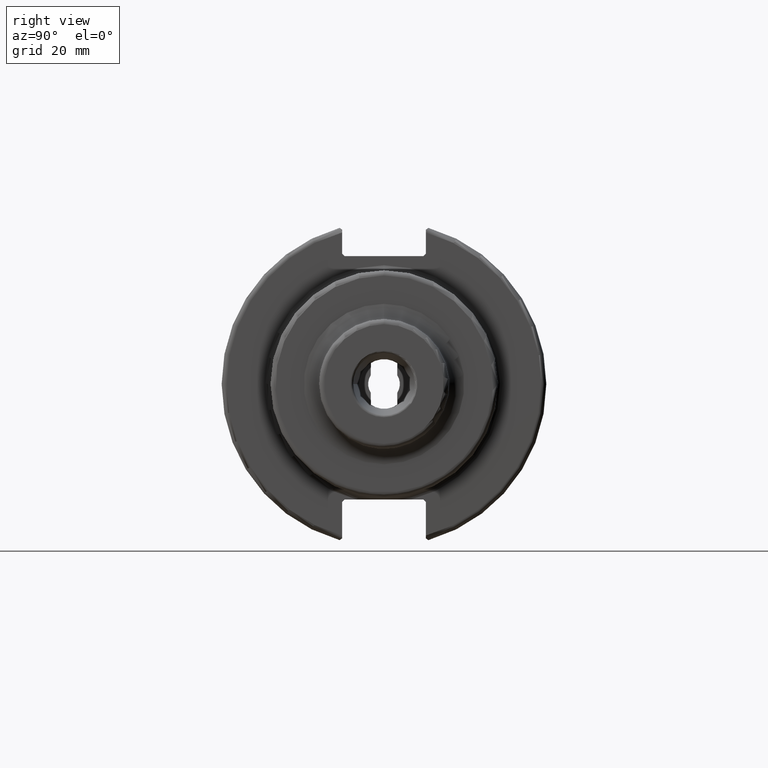
[diagram: clean part render]
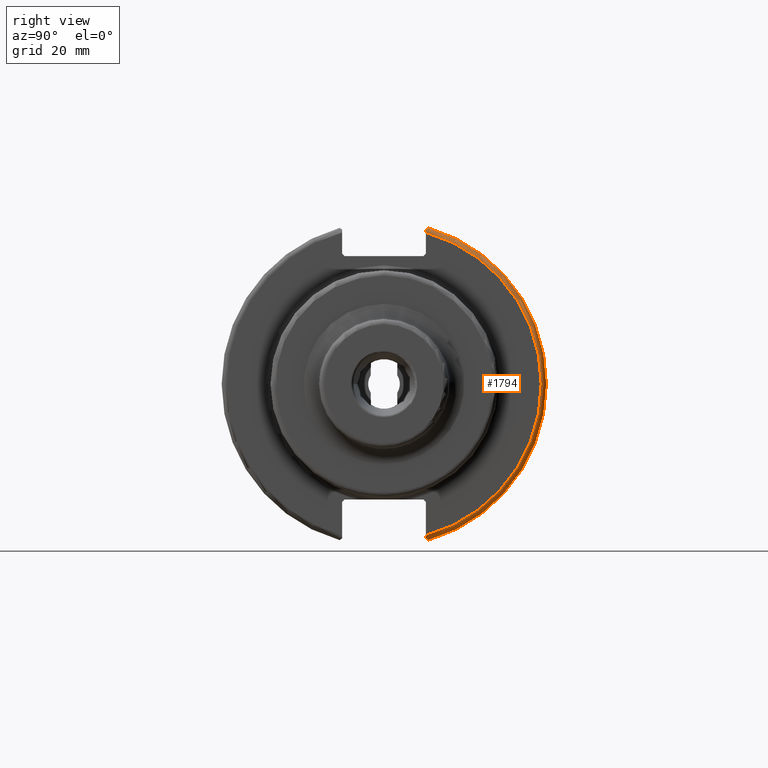
[diagram: same view with one face highlighted and labeled with its STEP entity id]
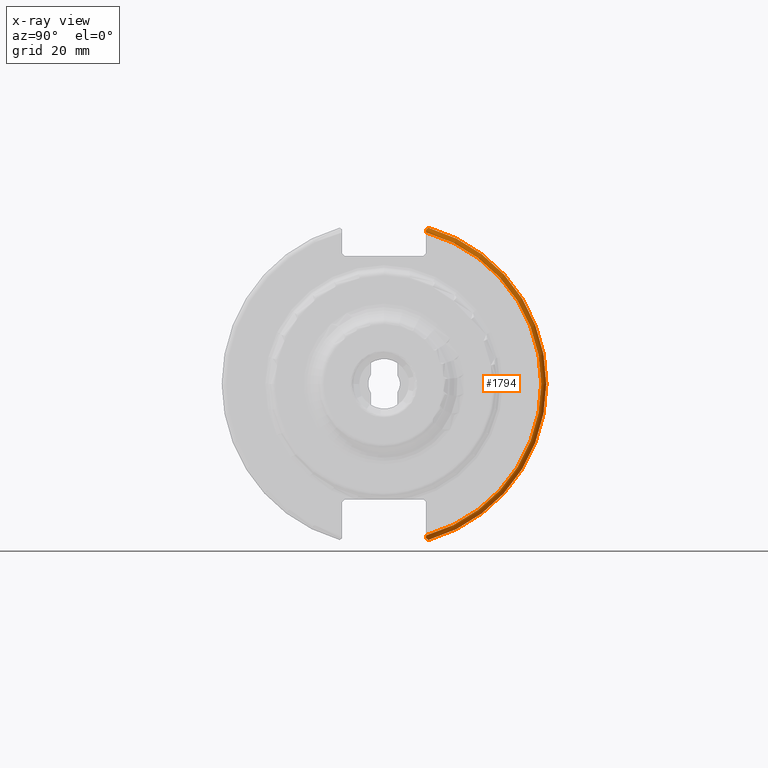
[diagram: x-ray of the same camera — body ghosted, the highlighted face saturated]
A machine part, right view. The second image highlights one B-rep face of the part: STEP entity #1794.
The next image is the same camera in x-ray: the body ghosted, the highlighted face saturated — about 0% of this face is hidden behind the body in this view.
In plain terms, the highlighted toroidal blend (fillet) surface has major radius 30.75 mm and minor (blend) radius 1 mm.
Its self-contained STEP definition (entity closure, byte-faithful):
#90=B_SPLINE_CURVE_WITH_KNOTS('',3,(#3490,#3491,#3492,#3493,#3494,#3495),
 .UNSPECIFIED.,.F.,.F.,(4,2,4),(0.0977210450333157,0.111963554372601,0.150804064902975),
 .UNSPECIFIED.);
#91=B_SPLINE_CURVE_WITH_KNOTS('',3,(#3499,#3500,#3501,#3502,#3503,#3504),
 .UNSPECIFIED.,.F.,.F.,(4,2,4),(0.452741154494498,0.491581665024872,0.505824174364157),
 .UNSPECIFIED.);
#92=B_SPLINE_CURVE_WITH_KNOTS('',3,(#3506,#3507,#3508,#3509,#3510,#3511,
#3512,#3513),.UNSPECIFIED.,.F.,.F.,(4,2,2,4),(-0.104180282751876,-0.0729784742461443,
-0.0343524753874979,0.),.UNSPECIFIED.);
#93=B_SPLINE_CURVE_WITH_KNOTS('',3,(#3516,#3517,#3518,#3519,#3520,#3521,
#3522,#3523),.UNSPECIFIED.,.F.,.F.,(4,2,2,4),(0.,0.0343524753874976,0.0729784742461442,
0.104180282751876),.UNSPECIFIED.);
#496=FACE_OUTER_BOUND('',#604,.T.);
#604=EDGE_LOOP('',(#1489,#1490,#1491,#1492,#1493,#1494));
#701=CIRCLE('',#1952,30.75);
#702=CIRCLE('',#1953,31.75);
#838=VERTEX_POINT('',#3488);
#839=VERTEX_POINT('',#3489);
#840=VERTEX_POINT('',#3496);
#841=VERTEX_POINT('',#3498);
#842=VERTEX_POINT('',#3505);
#843=VERTEX_POINT('',#3514);
#1070=EDGE_CURVE('',#838,#839,#90,.T.);
#1071=EDGE_CURVE('',#839,#840,#701,.T.);
#1072=EDGE_CURVE('',#840,#841,#91,.T.);
#1073=EDGE_CURVE('',#841,#842,#92,.T.);
#1074=EDGE_CURVE('',#842,#843,#702,.T.);
#1075=EDGE_CURVE('',#843,#838,#93,.T.);
#1489=ORIENTED_EDGE('',*,*,#1070,.T.);
#1490=ORIENTED_EDGE('',*,*,#1071,.T.);
#1491=ORIENTED_EDGE('',*,*,#1072,.T.);
#1492=ORIENTED_EDGE('',*,*,#1073,.T.);
#1493=ORIENTED_EDGE('',*,*,#1074,.T.);
#1494=ORIENTED_EDGE('',*,*,#1075,.T.);
#1733=TOROIDAL_SURFACE('',#1951,30.75,1.);
#1794=ADVANCED_FACE('',(#496),#1733,.T.);
#1951=AXIS2_PLACEMENT_3D('',#3487,#2274,#2275);
#1952=AXIS2_PLACEMENT_3D('',#3497,#2276,#2277);
#1953=AXIS2_PLACEMENT_3D('',#3515,#2278,#2279);
#2274=DIRECTION('center_axis',(1.,0.,0.));
#2275=DIRECTION('ref_axis',(0.,0.,-1.));
#2276=DIRECTION('center_axis',(-1.,0.,0.));
#2277=DIRECTION('ref_axis',(0.,1.,-6.12323399573677E-17));
#2278=DIRECTION('center_axis',(1.,0.,0.));
#2279=DIRECTION('ref_axis',(0.,1.,-6.12323399573676E-17));
#3487=CARTESIAN_POINT('Origin',(18.05,0.,0.));
#3488=CARTESIAN_POINT('',(18.9058722749097,8.19,30.1755016258903));
#3489=CARTESIAN_POINT('',(19.05,8.19,29.6392712461019));
#3490=CARTESIAN_POINT('Ctrl Pts',(18.9058722749097,8.19,30.1755016258903));
#3491=CARTESIAN_POINT('Ctrl Pts',(18.9318163728133,8.19,30.131014531546));
#3492=CARTESIAN_POINT('Ctrl Pts',(18.9539643471756,8.19,30.0852355256475));
#3493=CARTESIAN_POINT('Ctrl Pts',(19.020485567083,8.19,29.9212724384851));
#3494=CARTESIAN_POINT('Ctrl Pts',(19.05,8.19,29.7687396145364));
#3495=CARTESIAN_POINT('Ctrl Pts',(19.05,8.19,29.6392712461019));
#3496=CARTESIAN_POINT('',(19.05,8.19,-29.6392712461019));
#3497=CARTESIAN_POINT('Origin',(19.05,0.,0.));
#3498=CARTESIAN_POINT('',(18.9058722749097,8.19,-30.1755016258903));
#3499=CARTESIAN_POINT('Ctrl Pts',(19.05,8.19,-29.6392712461019));
#3500=CARTESIAN_POINT('Ctrl Pts',(19.05,8.19,-29.7687396145364));
#3501=CARTESIAN_POINT('Ctrl Pts',(19.020485567083,8.19,-29.9212724384851));
#3502=CARTESIAN_POINT('Ctrl Pts',(18.9539643471756,8.19,-30.0852355256475));
#3503=CARTESIAN_POINT('Ctrl Pts',(18.9318163728133,8.19,-30.131014531546));
#3504=CARTESIAN_POINT('Ctrl Pts',(18.9058722749097,8.19,-30.1755016258903));
#3505=CARTESIAN_POINT('',(18.05,8.67204822802685,-30.5427254764662));
#3506=CARTESIAN_POINT('Ctrl Pts',(18.9058722749097,8.19,-30.1755016258903));
#3507=CARTESIAN_POINT('Ctrl Pts',(18.8574463042989,8.2703682833078,-30.2367261024977));
#3508=CARTESIAN_POINT('Ctrl Pts',(18.7926702662319,8.34909446036477,-30.2966996242308));
#3509=CARTESIAN_POINT('Ctrl Pts',(18.6396724190507,8.48862804755883,-30.4029961692546));
#3510=CARTESIAN_POINT('Ctrl Pts',(18.5184414294771,8.56482138642532,-30.4610401774263));
#3511=CARTESIAN_POINT('Ctrl Pts',(18.2983170433775,8.6471881193939,-30.5237870709558));
#3512=CARTESIAN_POINT('Ctrl Pts',(18.1645082512917,8.67204822802685,-30.5427254764662));
#3513=CARTESIAN_POINT('Ctrl Pts',(18.05,8.67204822802685,-30.5427254764662));
#3514=CARTESIAN_POINT('',(18.05,8.67204822802685,30.5427254764662));
#3515=CARTESIAN_POINT('Origin',(18.05,0.,0.));
#3516=CARTESIAN_POINT('Ctrl Pts',(18.05,8.67204822802686,30.5427254764662));
#3517=CARTESIAN_POINT('Ctrl Pts',(18.1645082512917,8.67204822802686,30.5427254764662));
#3518=CARTESIAN_POINT('Ctrl Pts',(18.2983170433775,8.6471881193939,30.5237870709558));
#3519=CARTESIAN_POINT('Ctrl Pts',(18.5184414294771,8.56482138642532,30.4610401774263));
#3520=CARTESIAN_POINT('Ctrl Pts',(18.6396724190507,8.48862804755883,30.4029961692546));
#3521=CARTESIAN_POINT('Ctrl Pts',(18.7926702662319,8.34909446036477,30.2966996242308));
#3522=CARTESIAN_POINT('Ctrl Pts',(18.8574463042989,8.2703682833078,30.2367261024977));
#3523=CARTESIAN_POINT('Ctrl Pts',(18.9058722749097,8.19,30.1755016258903));